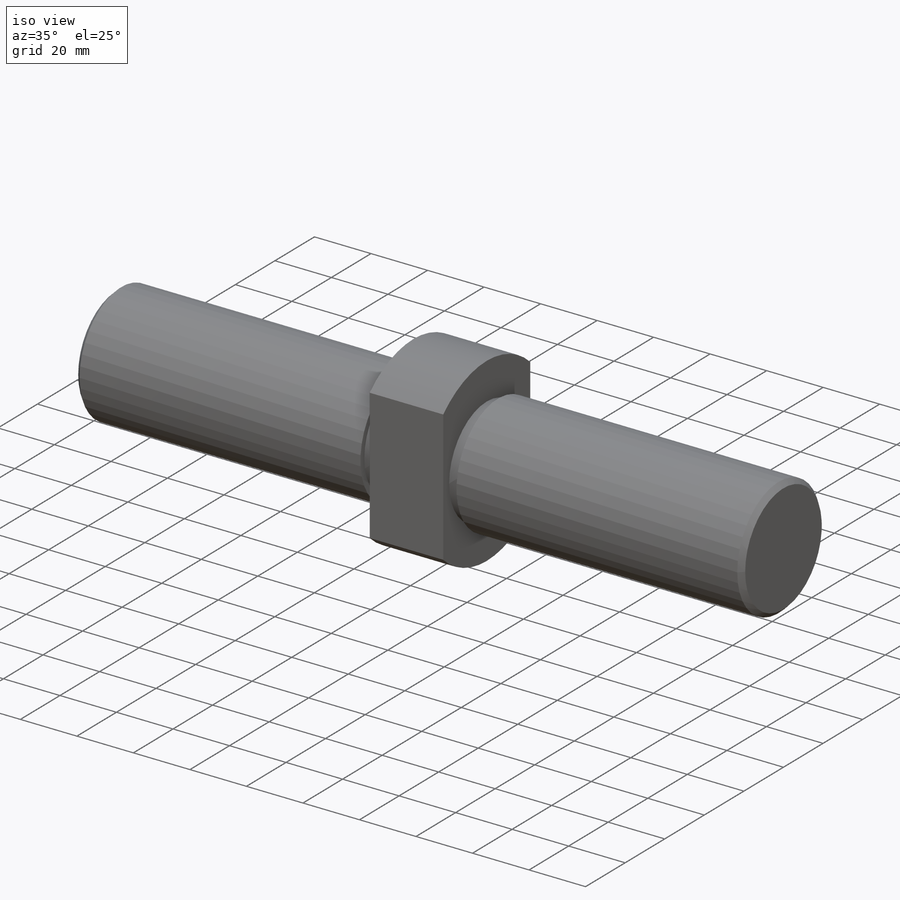
[diagram: iso view]
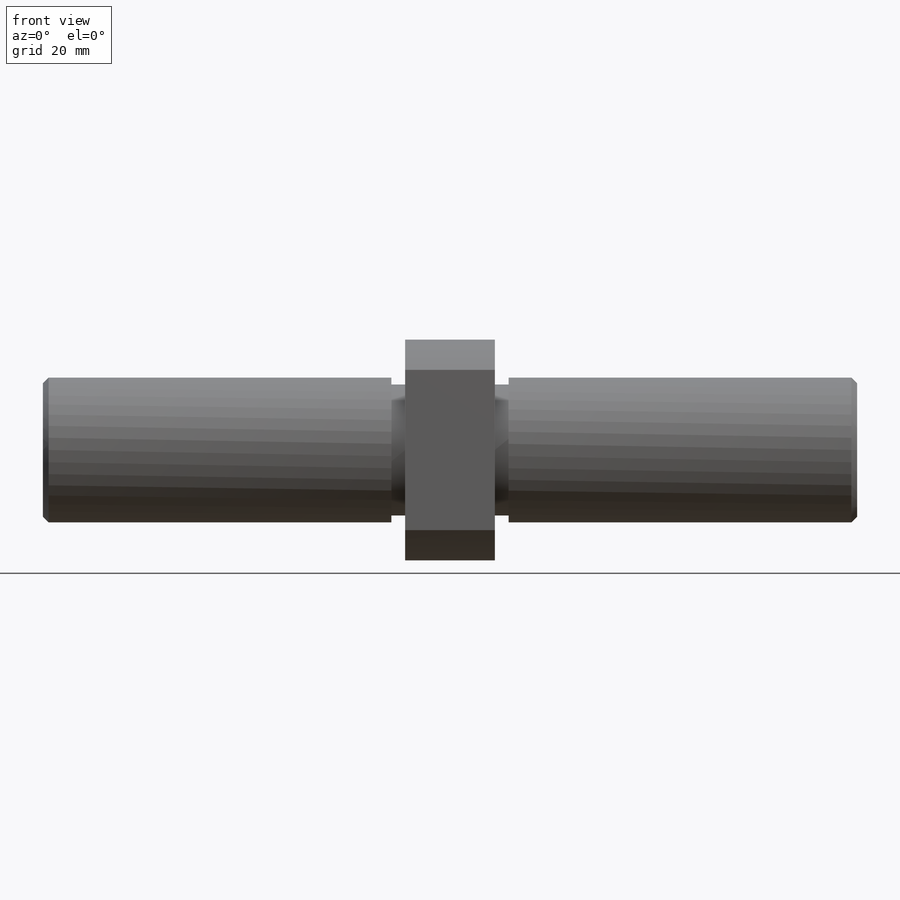
[diagram: front view]
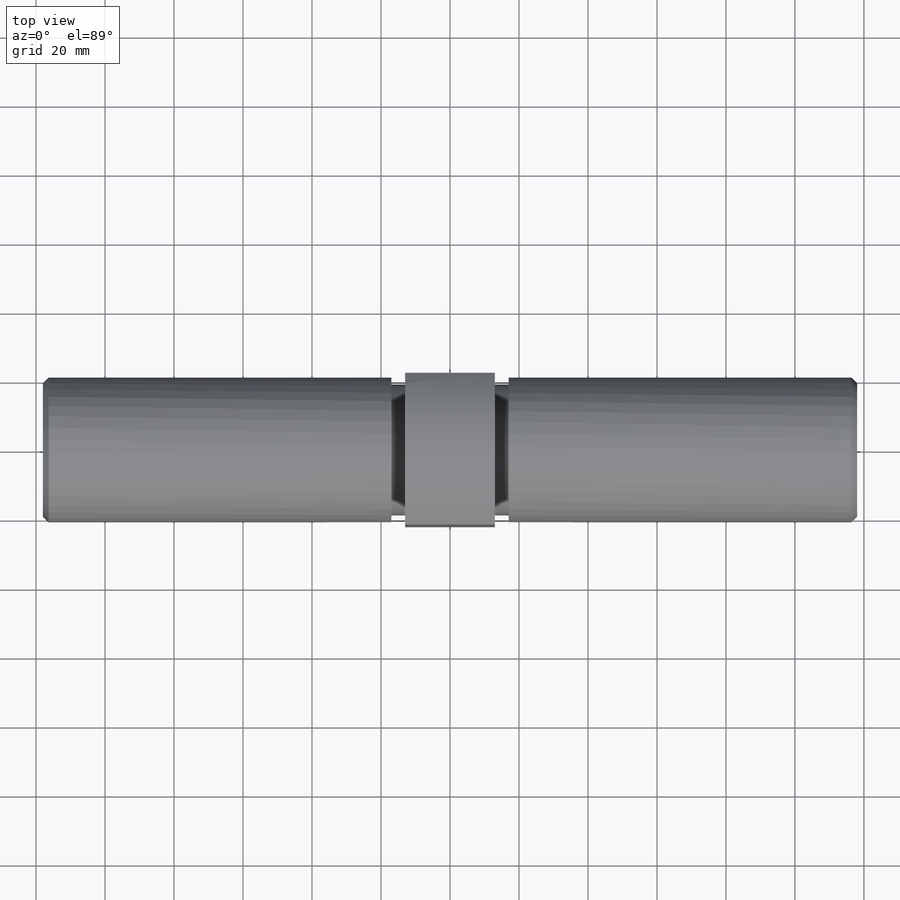
[diagram: top view]
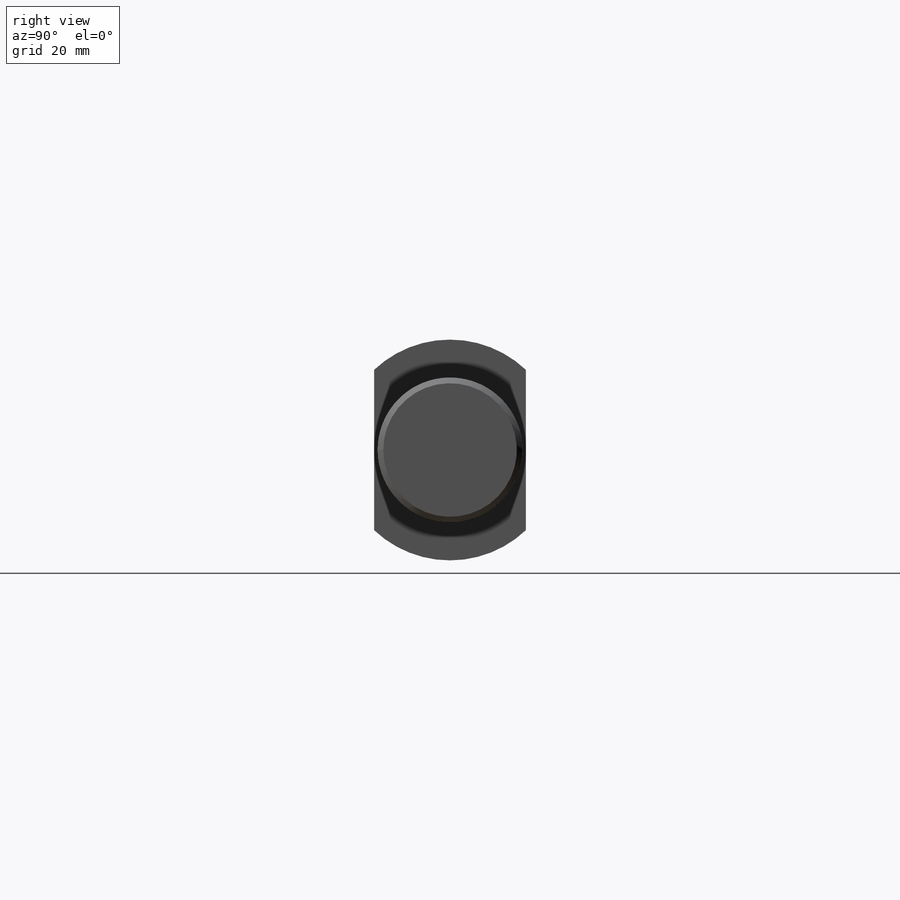
[diagram: right view]
SOLIDWORKS PART (.sldprt)
format: sldprt  version: not decoded by parser v0  size: 340,992 bytes
history: native  units: mm
features: plane x3, sketch x3, extrude x3, material x1, thread x1, chamfer x1, mirror x1 (+9 scaffold rows collapsed)
feature tree (22):
  scaffold x9  (default folders/planes/origin — collapsed)
  material  "Сталь"
  plane  "Спереди"
  plane  "Сверху"
  plane  "Справа"
  sketch  "Эскиз1"  dims[D1=64.0mm D2=44.0mm]
  extrude  "Бобышка-Вытянуть1"  Depth=13mm
  sketch  "Эскиз2"  dims[D1=38.0mm]
  extrude  "Бобышка-Вытянуть2"  Depth=105mm
  sketch  "Эскиз3"  dims[D1=42.0mm]
  extrude  "Бобышка-Вытянуть3"  [1 undecoded]
  thread  "Условное изображение резьбы1"  Diameter=38.704mm  [1 undecoded]
  chamfer  "Фаска1"  Distance=1.648mm Angle=45deg
  mirror  "Зеркальное отражение4"
decode coverage: 7 of 9 modeling features carry decoded parameters
note: 2 parameter values undecoded
note: suppression state not decoded; provenance and decode notes live in map.json
